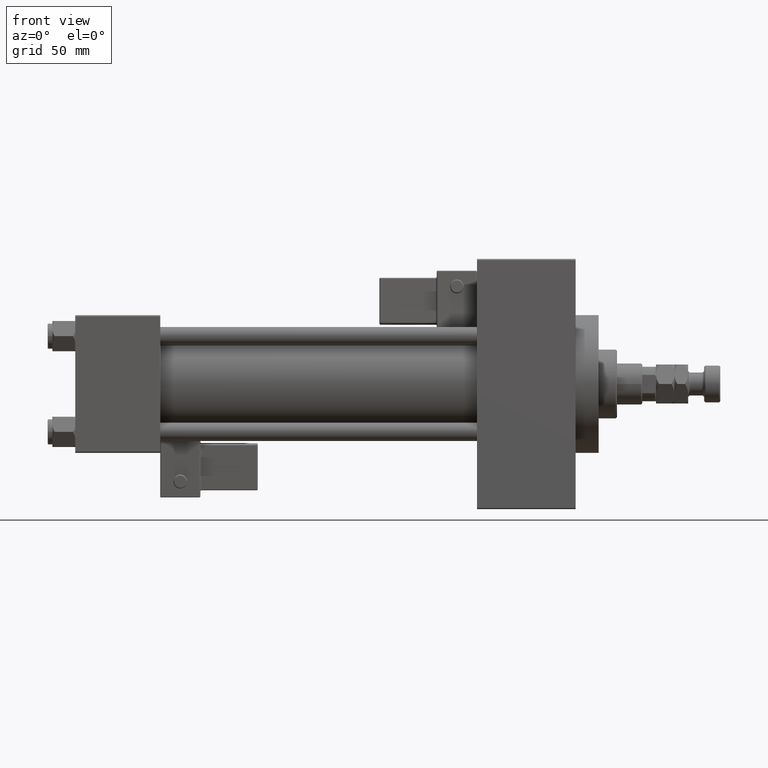
[diagram: clean part render]
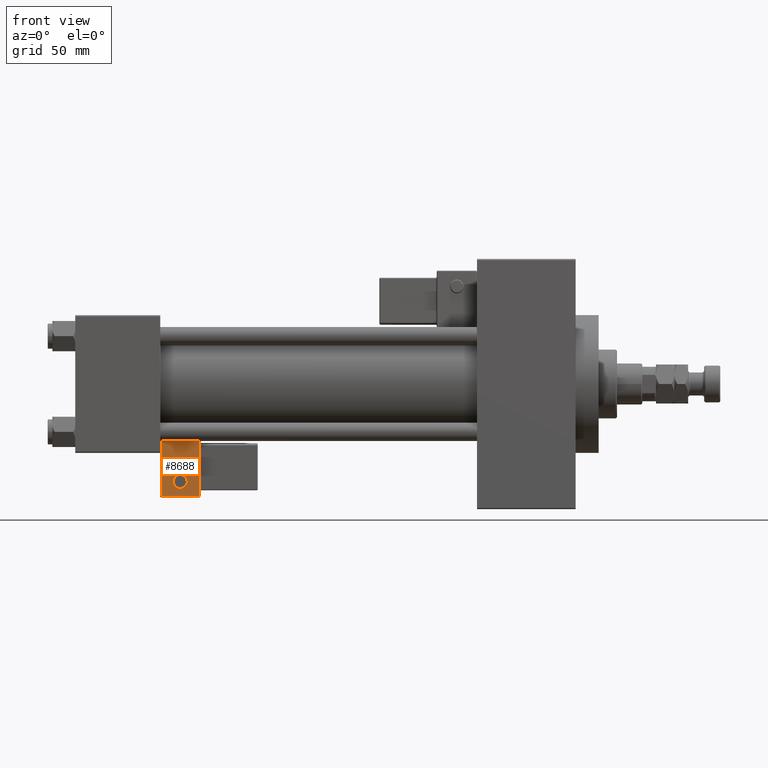
[diagram: same view with one face highlighted and labeled with its STEP entity id]
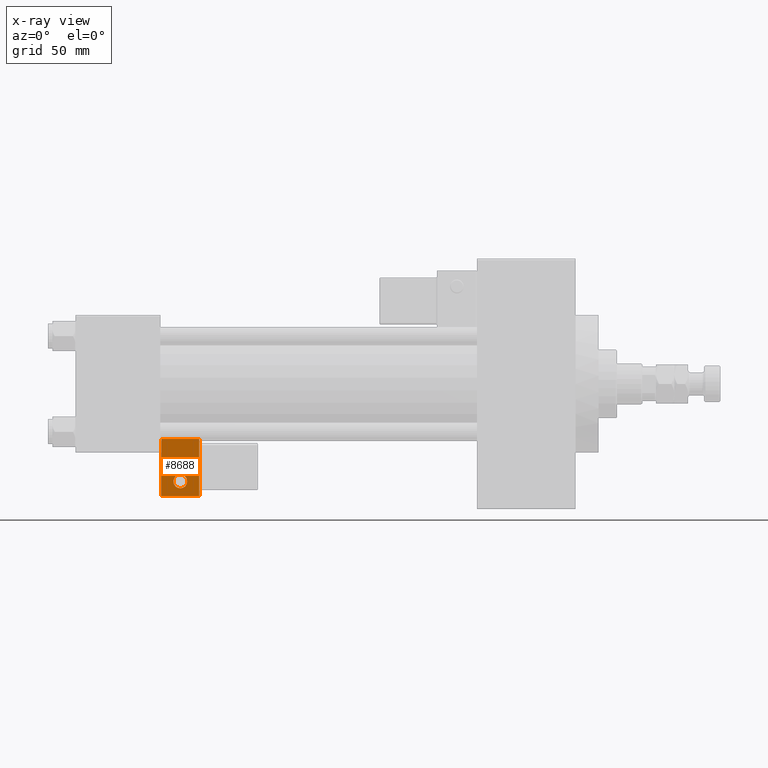
[diagram: x-ray of the same camera — body ghosted, the highlighted face saturated]
A machine part, front view. The second image highlights one B-rep face of the part: STEP entity #8688.
The next image is the same camera in x-ray: the body ghosted, the highlighted face saturated — about 0% of this face is hidden behind the body in this view.
In plain terms, the highlighted planar face has unit normal (0, 0.9994, 0.0353).
Its self-contained STEP definition (entity closure, byte-faithful):
#172 = FACE_OUTER_BOUND ( 'NONE', #4730, .T. ) ;
#321 = VERTEX_POINT ( 'NONE', #43823 ) ;
#1359 = CARTESIAN_POINT ( 'NONE',  ( 8.250000000000000000, -35.75000000000000000, 24.50000000000000000 ) ) ;
#2181 = LINE ( 'NONE', #42379, #23170 ) ;
#3503 = EDGE_CURVE ( 'NONE', #321, #14687, #20015, .T. ) ;
#4705 = DIRECTION ( 'NONE',  ( -1.334402673828313093E-16, 0.000000000000000000, -1.000000000000000000 ) ) ;
#4730 = EDGE_LOOP ( 'NONE', ( #44570, #14860, #44992, #14188 ) ) ;
#4815 = CARTESIAN_POINT ( 'NONE',  ( 8.250000000000003553, -35.75000000000000000, -0.5000000000000002220 ) ) ;
#4833 = CARTESIAN_POINT ( 'NONE',  ( 4.857225732735059864E-15, -35.75000000000000000, 24.50000000000000000 ) ) ;
#5064 = ORIENTED_EDGE ( 'NONE', *, *, #26825, .F. ) ;
#5961 = AXIS2_PLACEMENT_3D ( 'NONE', #14132, #14395, #42394 ) ;
#8497 = PLANE ( 'NONE',  #27036 ) ;
#8688 = ADVANCED_FACE ( 'NONE', ( #172, #47632 ), #8497, .F. ) ;
#8880 = VECTOR ( 'NONE', #20401, 1000.000000000000000 ) ;
#9142 = VERTEX_POINT ( 'NONE', #16712 ) ;
#9186 = CARTESIAN_POINT ( 'NONE',  ( -8.250000000000003553, -35.75000000000000000, -0.5000000000000002220 ) ) ;
#9590 = EDGE_LOOP ( 'NONE', ( #23490, #5064 ) ) ;
#11516 = EDGE_CURVE ( 'NONE', #31854, #321, #24038, .T. ) ;
#12243 = CARTESIAN_POINT ( 'NONE',  ( -8.250000000000003553, -35.75000000000000000, 1.100882205908358788E-15 ) ) ;
#12872 = VECTOR ( 'NONE', #47806, 1000.000000000000000 ) ;
#13367 = CIRCLE ( 'NONE', #34898, 2.999999999999999112 ) ;
#14132 = CARTESIAN_POINT ( 'NONE',  ( -4.336808689942017736E-16, -35.75000000000000000, 6.000000000000001776 ) ) ;
#14188 = ORIENTED_EDGE ( 'NONE', *, *, #19780, .T. ) ;
#14395 = DIRECTION ( 'NONE',  ( -0.000000000000000000, -1.000000000000000000, -0.000000000000000000 ) ) ;
#14687 = VERTEX_POINT ( 'NONE', #9186 ) ;
#14860 = ORIENTED_EDGE ( 'NONE', *, *, #3503, .T. ) ;
#15738 = DIRECTION ( 'NONE',  ( 0.000000000000000000, -0.000000000000000000, 1.000000000000000000 ) ) ;
#16509 = CARTESIAN_POINT ( 'NONE',  ( 0.000000000000000000, -35.75000000000000000, 0.000000000000000000 ) ) ;
#16712 = CARTESIAN_POINT ( 'NONE',  ( -4.336808689942017736E-16, -35.75000000000000000, 9.000000000000001776 ) ) ;
#18006 = DIRECTION ( 'NONE',  ( -1.334402673828313339E-16, 0.000000000000000000, 1.000000000000000000 ) ) ;
#19780 = EDGE_CURVE ( 'NONE', #32664, #31854, #2181, .T. ) ;
#20015 = LINE ( 'NONE', #12243, #28155 ) ;
#20401 = DIRECTION ( 'NONE',  ( -1.000000000000000000, 0.000000000000000000, 1.982541115402065110E-16 ) ) ;
#23170 = VECTOR ( 'NONE', #18006, 1000.000000000000000 ) ;
#23244 = EDGE_CURVE ( 'NONE', #9142, #36665, #13367, .T. ) ;
#23490 = ORIENTED_EDGE ( 'NONE', *, *, #23244, .F. ) ;
#24038 = LINE ( 'NONE', #4833, #8880 ) ;
#24303 = DIRECTION ( 'NONE',  ( 0.000000000000000000, 1.000000000000000000, 0.000000000000000000 ) ) ;
#25291 = CARTESIAN_POINT ( 'NONE',  ( -4.336808689942017736E-16, -35.75000000000000000, 6.000000000000001776 ) ) ;
#26825 = EDGE_CURVE ( 'NONE', #36665, #9142, #45710, .T. ) ;
#27036 = AXIS2_PLACEMENT_3D ( 'NONE', #16509, #24303, #15738 ) ;
#28155 = VECTOR ( 'NONE', #4705, 1000.000000000000000 ) ;
#31735 = CARTESIAN_POINT ( 'NONE',  ( 0.000000000000000000, -35.75000000000000000, -0.5000000000000002220 ) ) ;
#31854 = VERTEX_POINT ( 'NONE', #1359 ) ;
#32664 = VERTEX_POINT ( 'NONE', #4815 ) ;
#32747 = LINE ( 'NONE', #31735, #12872 ) ;
#34898 = AXIS2_PLACEMENT_3D ( 'NONE', #25291, #35928, #47866 ) ;
#35928 = DIRECTION ( 'NONE',  ( -0.000000000000000000, -1.000000000000000000, -0.000000000000000000 ) ) ;
#36665 = VERTEX_POINT ( 'NONE', #40662 ) ;
#40662 = CARTESIAN_POINT ( 'NONE',  ( -6.628682924999581145E-17, -35.75000000000000000, 3.000000000000001776 ) ) ;
#42379 = CARTESIAN_POINT ( 'NONE',  ( 8.250000000000003553, -35.75000000000000000, 1.100882205908358986E-15 ) ) ;
#42394 = DIRECTION ( 'NONE',  ( 0.000000000000000000, 0.000000000000000000, 1.000000000000000000 ) ) ;
#43823 = CARTESIAN_POINT ( 'NONE',  ( -8.250000000000000000, -35.75000000000000000, 24.50000000000000355 ) ) ;
#44570 = ORIENTED_EDGE ( 'NONE', *, *, #11516, .T. ) ;
#44992 = ORIENTED_EDGE ( 'NONE', *, *, #50530, .T. ) ;
#45710 = CIRCLE ( 'NONE', #5961, 2.999999999999999112 ) ;
#47632 = FACE_BOUND ( 'NONE', #9590, .T. ) ;
#47806 = DIRECTION ( 'NONE',  ( 1.000000000000000000, 0.000000000000000000, 0.000000000000000000 ) ) ;
#47866 = DIRECTION ( 'NONE',  ( 0.000000000000000000, 0.000000000000000000, 1.000000000000000000 ) ) ;
#50530 = EDGE_CURVE ( 'NONE', #14687, #32664, #32747, .T. ) ;